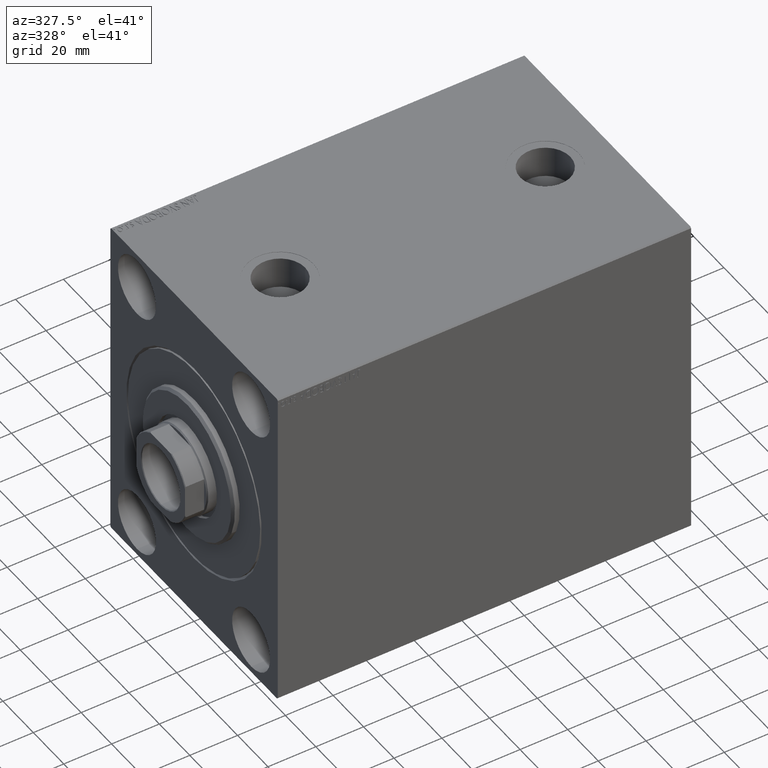
[diagram: clean part render]
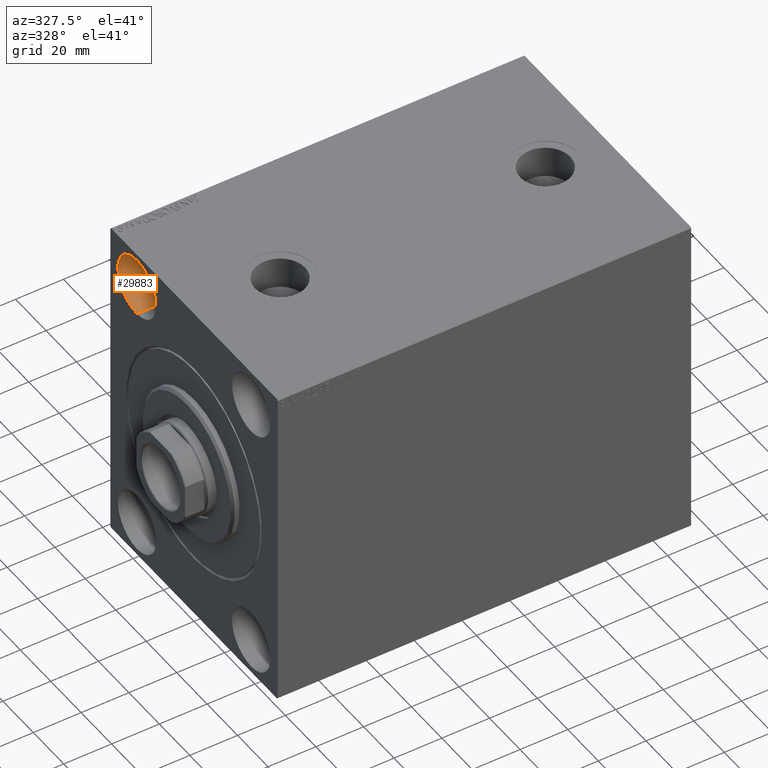
[diagram: same view with one face highlighted and labeled with its STEP entity id]
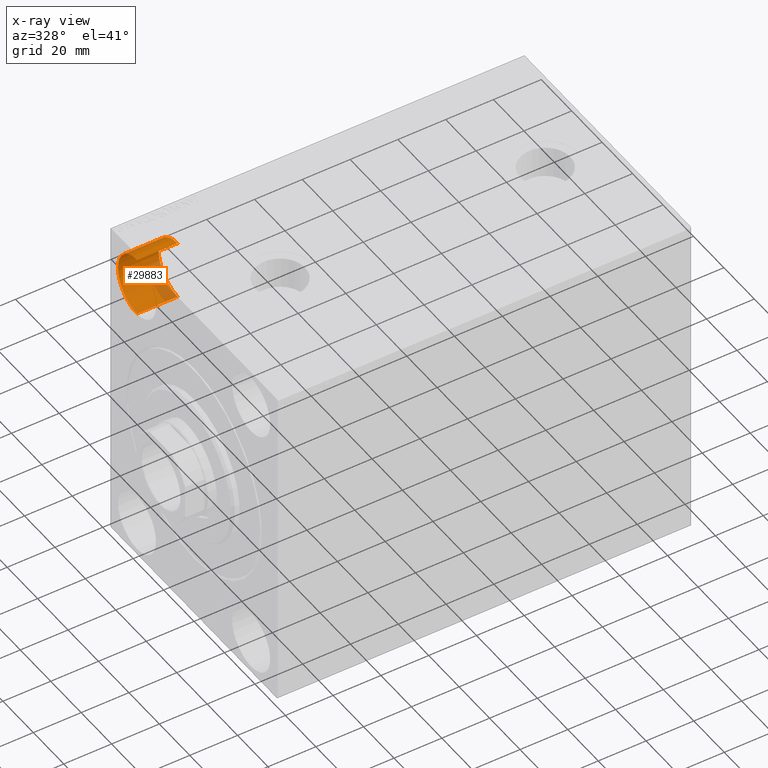
[diagram: x-ray of the same camera — body ghosted, the highlighted face saturated]
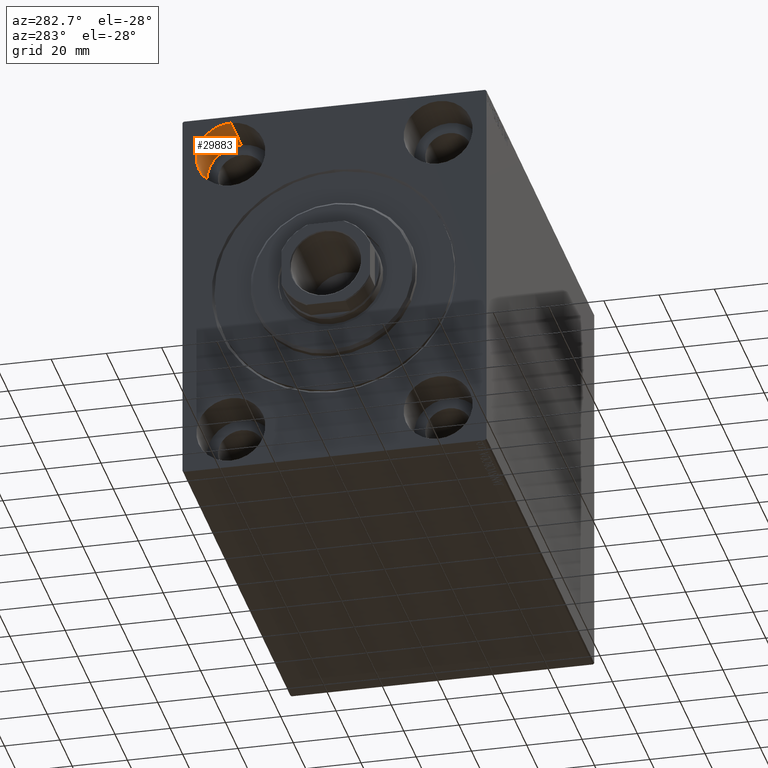
[diagram: same view with one face highlighted and labeled with its STEP entity id]
A machine part, auxiliary view. The second image highlights one B-rep face of the part: STEP entity #29883.
The next image is the same camera in x-ray: the body ghosted, the highlighted face saturated — about 20% of this face is hidden behind the body in this view.
A second angle (auxiliary view) of the same face is appended — the face is thin or edge-on in the first view.
In plain terms, the highlighted cylindrical surface (edge-blend (fillet) strip) has radius 12.5 mm, axis along (-1, -0, -0).
Its self-contained STEP definition (entity closure, byte-faithful):
#401 = VERTEX_POINT ( 'NONE', #17721 ) ;
#466 = DIRECTION ( 'NONE',  ( 0.000000000000000000, 0.000000000000000000, 1.000000000000000000 ) ) ;
#1614 = EDGE_CURVE ( 'NONE', #401, #4587, #6575, .T. ) ;
#4124 = CARTESIAN_POINT ( 'NONE',  ( 17.00000000000000000, 37.50000000000000711, 55.00000000000000711 ) ) ;
#4440 = EDGE_CURVE ( 'NONE', #4587, #21324, #20323, .T. ) ;
#4565 = DIRECTION ( 'NONE',  ( 0.000000000000000000, 0.000000000000000000, 1.000000000000000000 ) ) ;
#4587 = VERTEX_POINT ( 'NONE', #9211 ) ;
#4718 = VECTOR ( 'NONE', #26471, 1000.000000000000000 ) ;
#6575 = LINE ( 'NONE', #9705, #7752 ) ;
#6775 = AXIS2_PLACEMENT_3D ( 'NONE', #30799, #20763, #466 ) ;
#7752 = VECTOR ( 'NONE', #36893, 1000.000000000000000 ) ;
#8355 = DIRECTION ( 'NONE',  ( -1.000000000000000000, -0.000000000000000000, -0.000000000000000000 ) ) ;
#9211 = CARTESIAN_POINT ( 'NONE',  ( 0.000000000000000000, 37.50000000000000711, 67.50000000000000000 ) ) ;
#9705 = CARTESIAN_POINT ( 'NONE',  ( 17.00000000000000000, 37.50000000000000711, 67.50000000000000000 ) ) ;
#10164 = ORIENTED_EDGE ( 'NONE', *, *, #41311, .F. ) ;
#10578 = EDGE_CURVE ( 'NONE', #23050, #21324, #16645, .T. ) ;
#11742 = ORIENTED_EDGE ( 'NONE', *, *, #4440, .T. ) ;
#11903 = CARTESIAN_POINT ( 'NONE',  ( 0.000000000000000000, 37.50000000000000711, 55.00000000000000711 ) ) ;
#12867 = CARTESIAN_POINT ( 'NONE',  ( 17.00000000000000000, 37.50000000000000711, 42.50000000000000711 ) ) ;
#13917 = CIRCLE ( 'NONE', #6775, 12.49999999999999645 ) ;
#15246 = DIRECTION ( 'NONE',  ( 0.000000000000000000, 0.000000000000000000, 1.000000000000000000 ) ) ;
#15470 = DIRECTION ( 'NONE',  ( -1.000000000000000000, 0.000000000000000000, 0.000000000000000000 ) ) ;
#16645 = LINE ( 'NONE', #12867, #4718 ) ;
#17721 = CARTESIAN_POINT ( 'NONE',  ( 17.00000000000000000, 37.50000000000000711, 67.50000000000000000 ) ) ;
#20323 = CIRCLE ( 'NONE', #28066, 12.49999999999999645 ) ;
#20763 = DIRECTION ( 'NONE',  ( -1.000000000000000000, 0.000000000000000000, 0.000000000000000000 ) ) ;
#21324 = VERTEX_POINT ( 'NONE', #36978 ) ;
#21505 = ORIENTED_EDGE ( 'NONE', *, *, #10578, .F. ) ;
#21924 = CARTESIAN_POINT ( 'NONE',  ( 17.00000000000000000, 37.50000000000000711, 42.50000000000000711 ) ) ;
#23050 = VERTEX_POINT ( 'NONE', #21924 ) ;
#24298 = AXIS2_PLACEMENT_3D ( 'NONE', #4124, #8355, #4565 ) ;
#26471 = DIRECTION ( 'NONE',  ( -1.000000000000000000, -0.000000000000000000, -0.000000000000000000 ) ) ;
#28066 = AXIS2_PLACEMENT_3D ( 'NONE', #11903, #15470, #15246 ) ;
#29143 = ORIENTED_EDGE ( 'NONE', *, *, #1614, .T. ) ;
#29883 = ADVANCED_FACE ( 'NONE', ( #31991 ), #35114, .F. ) ;
#30799 = CARTESIAN_POINT ( 'NONE',  ( 17.00000000000000000, 37.50000000000000711, 55.00000000000000711 ) ) ;
#31991 = FACE_OUTER_BOUND ( 'NONE', #42405, .T. ) ;
#35114 = CYLINDRICAL_SURFACE ( 'NONE', #24298, 12.49999999999999645 ) ;
#36893 = DIRECTION ( 'NONE',  ( -1.000000000000000000, -0.000000000000000000, -0.000000000000000000 ) ) ;
#36978 = CARTESIAN_POINT ( 'NONE',  ( 0.000000000000000000, 37.50000000000000711, 42.50000000000000711 ) ) ;
#41311 = EDGE_CURVE ( 'NONE', #401, #23050, #13917, .T. ) ;
#42405 = EDGE_LOOP ( 'NONE', ( #21505, #10164, #29143, #11742 ) ) ;